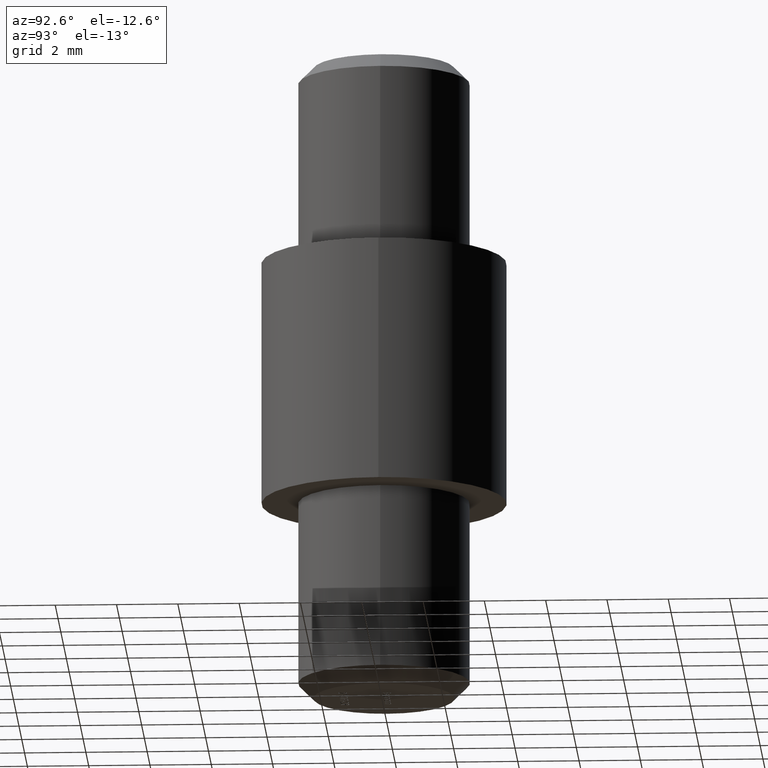
[diagram: clean part render]
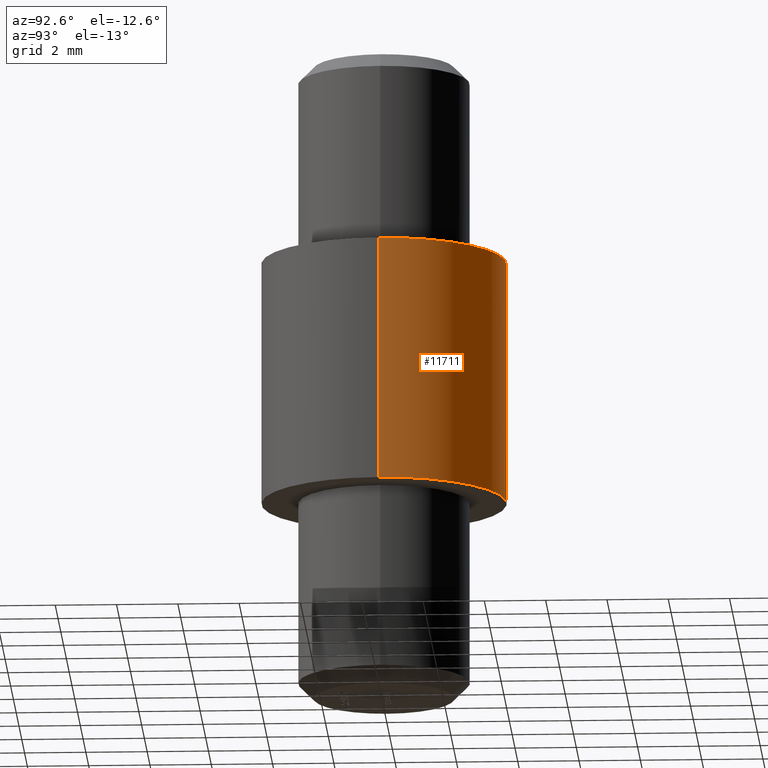
[diagram: same view with one face highlighted and labeled with its STEP entity id]
A machine part, auxiliary view. The second image highlights one B-rep face of the part: STEP entity #11711.
In plain terms, the highlighted cylindrical surface (partial cylindrical patch) has radius 4 mm, axis along (-0, -0, -1).
Its self-contained STEP definition (entity closure, byte-faithful):
#253 = CIRCLE ( 'NONE', #10894, 4.000000000000000000 ) ;
#2324 = DIRECTION ( 'NONE',  ( -0.0000000000000000000, -0.0000000000000000000, -1.000000000000000000 ) ) ;
#2709 = VERTEX_POINT ( 'NONE', #7559 ) ;
#2995 = DIRECTION ( 'NONE',  ( -0.0000000000000000000, -0.0000000000000000000, -1.000000000000000000 ) ) ;
#3215 = DIRECTION ( 'NONE',  ( 0.0000000000000000000, 0.0000000000000000000, 1.000000000000000000 ) ) ;
#4103 = DIRECTION ( 'NONE',  ( 1.000000000000000000, 0.0000000000000000000, 0.0000000000000000000 ) ) ;
#4113 = DIRECTION ( 'NONE',  ( 0.0000000000000000000, 0.0000000000000000000, 1.000000000000000000 ) ) ;
#4145 = DIRECTION ( 'NONE',  ( -1.000000000000000000, 0.0000000000000000000, 0.0000000000000000000 ) ) ;
#4574 = VECTOR ( 'NONE', #10016, 1000.000000000000000 ) ;
#5178 = VERTEX_POINT ( 'NONE', #6617 ) ;
#5422 = CARTESIAN_POINT ( 'NONE',  ( -4.000000000000000000, 0.0000000000000000000, 8.000000000000000000 ) ) ;
#5977 = CARTESIAN_POINT ( 'NONE',  ( -4.000000000000000000, 0.0000000000000000000, 8.000000000000000000 ) ) ;
#6240 = CARTESIAN_POINT ( 'NONE',  ( 4.000000000000000000, 4.898587196589412800E-016, 0.0000000000000000000 ) ) ;
#6617 = CARTESIAN_POINT ( 'NONE',  ( 4.000000000000000000, 4.898587196589412800E-016, 8.000000000000000000 ) ) ;
#6689 = VECTOR ( 'NONE', #2995, 1000.000000000000000 ) ;
#6818 = CARTESIAN_POINT ( 'NONE',  ( 0.0000000000000000000, 0.0000000000000000000, 8.000000000000000000 ) ) ;
#7257 = LINE ( 'NONE', #5422, #4574 ) ;
#7279 = CYLINDRICAL_SURFACE ( 'NONE', #9047, 4.000000000000000000 ) ;
#7559 = CARTESIAN_POINT ( 'NONE',  ( -4.000000000000000000, 0.0000000000000000000, 0.0000000000000000000 ) ) ;
#7818 = CARTESIAN_POINT ( 'NONE',  ( 0.0000000000000000000, 0.0000000000000000000, 0.0000000000000000000 ) ) ;
#8334 = EDGE_CURVE ( 'NONE', #9153, #2709, #7257, .T. ) ;
#8512 = EDGE_CURVE ( 'NONE', #5178, #9153, #9741, .T. ) ;
#8597 = ORIENTED_EDGE ( 'NONE', *, *, #9311, .T. ) ;
#9047 = AXIS2_PLACEMENT_3D ( 'NONE', #6818, #2324, #4145 ) ;
#9153 = VERTEX_POINT ( 'NONE', #5977 ) ;
#9250 = AXIS2_PLACEMENT_3D ( 'NONE', #10276, #4113, #10490 ) ;
#9292 = CARTESIAN_POINT ( 'NONE',  ( 4.000000000000000000, 4.898587196589412800E-016, 8.000000000000000000 ) ) ;
#9311 = EDGE_CURVE ( 'NONE', #5178, #10491, #11129, .T. ) ;
#9741 = CIRCLE ( 'NONE', #9250, 4.000000000000000000 ) ;
#9762 = FACE_OUTER_BOUND ( 'NONE', #10140, .T. ) ;
#9944 = ORIENTED_EDGE ( 'NONE', *, *, #11712, .T. ) ;
#10016 = DIRECTION ( 'NONE',  ( -0.0000000000000000000, -0.0000000000000000000, -1.000000000000000000 ) ) ;
#10140 = EDGE_LOOP ( 'NONE', ( #11294, #8597, #9944, #11114 ) ) ;
#10276 = CARTESIAN_POINT ( 'NONE',  ( 0.0000000000000000000, 0.0000000000000000000, 8.000000000000000000 ) ) ;
#10490 = DIRECTION ( 'NONE',  ( 1.000000000000000000, 0.0000000000000000000, 0.0000000000000000000 ) ) ;
#10491 = VERTEX_POINT ( 'NONE', #6240 ) ;
#10894 = AXIS2_PLACEMENT_3D ( 'NONE', #7818, #3215, #4103 ) ;
#11114 = ORIENTED_EDGE ( 'NONE', *, *, #8334, .F. ) ;
#11129 = LINE ( 'NONE', #9292, #6689 ) ;
#11294 = ORIENTED_EDGE ( 'NONE', *, *, #8512, .F. ) ;
#11711 = ADVANCED_FACE ( 'NONE', ( #9762 ), #7279, .T. ) ;
#11712 = EDGE_CURVE ( 'NONE', #10491, #2709, #253, .T. ) ;